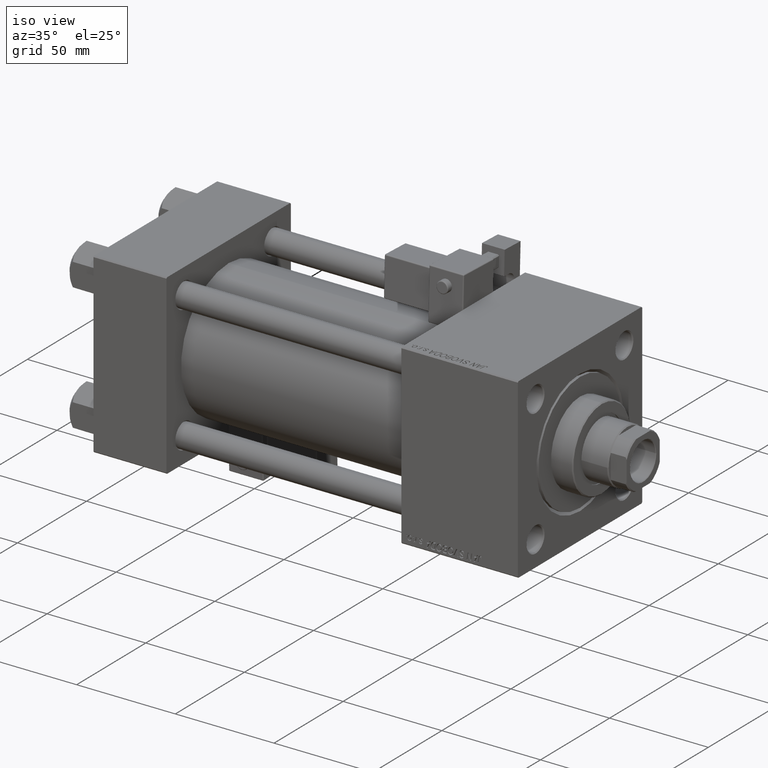
[diagram: clean part render]
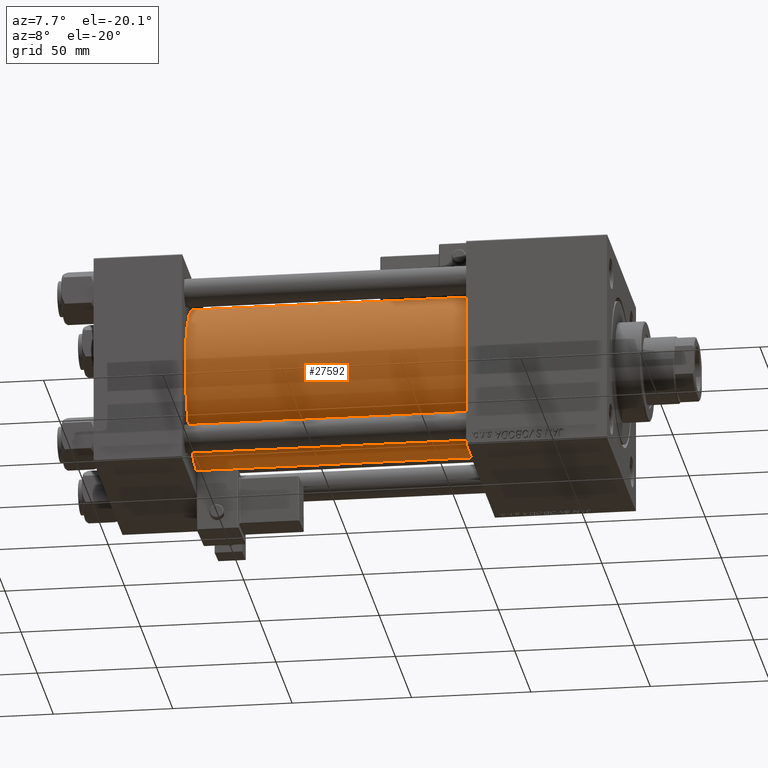
[diagram: tour spotlight — one face highlighted and labeled with its STEP entity id]
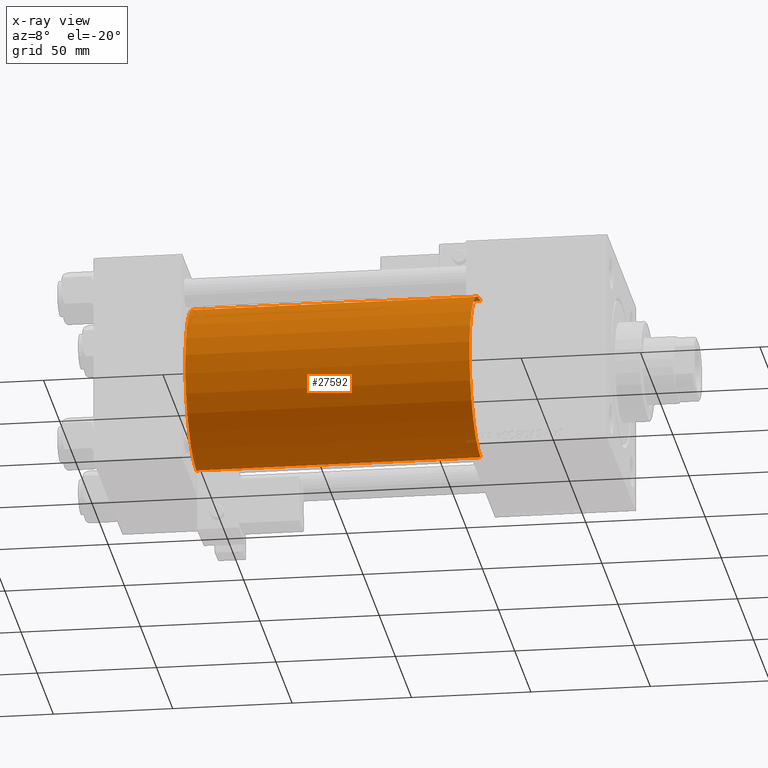
[diagram: x-ray of the same camera — body ghosted, this tour face saturated]
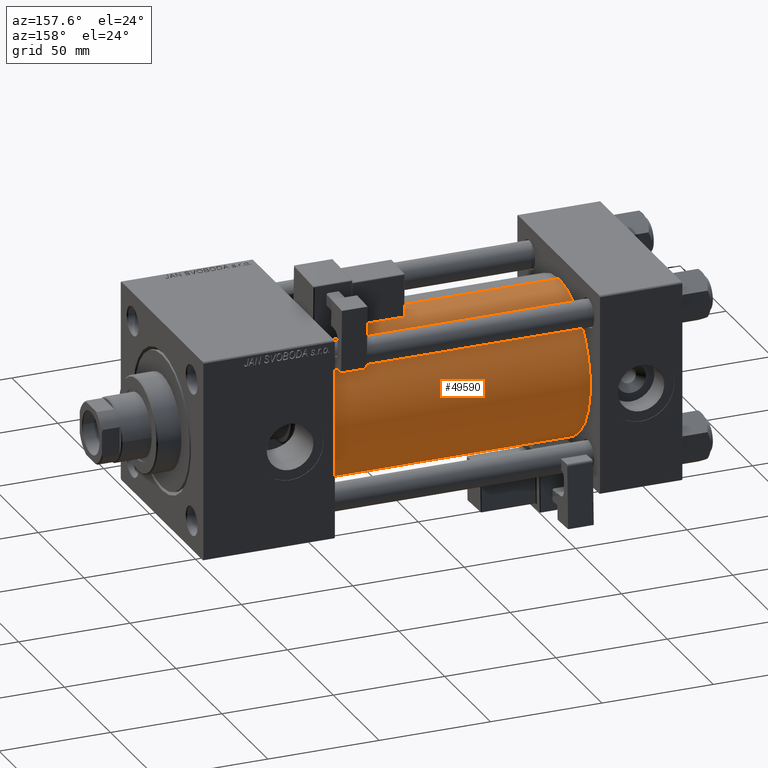
[diagram: tour spotlight — one face highlighted and labeled with its STEP entity id]
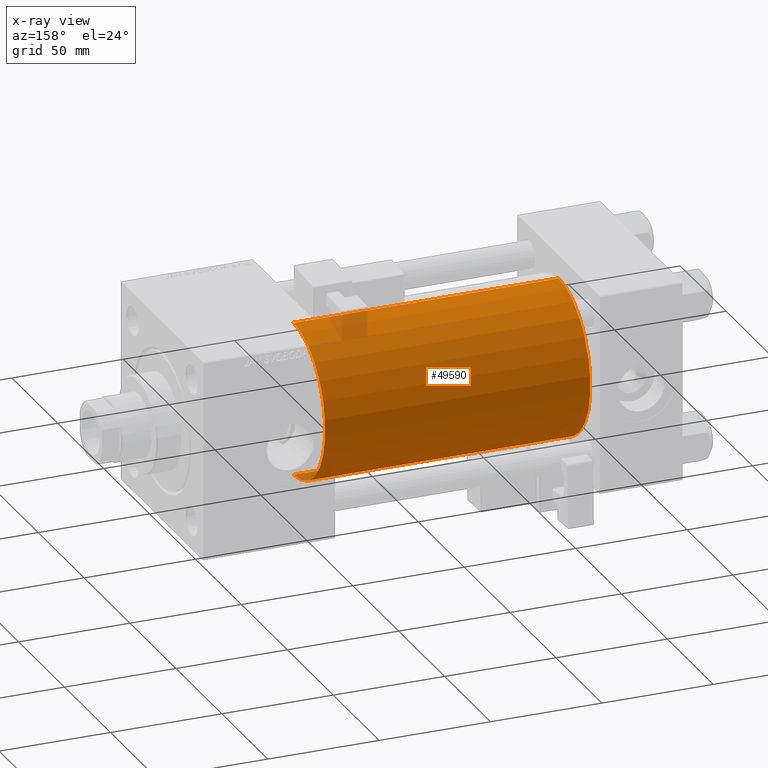
[diagram: x-ray of the same camera — body ghosted, this tour face saturated]
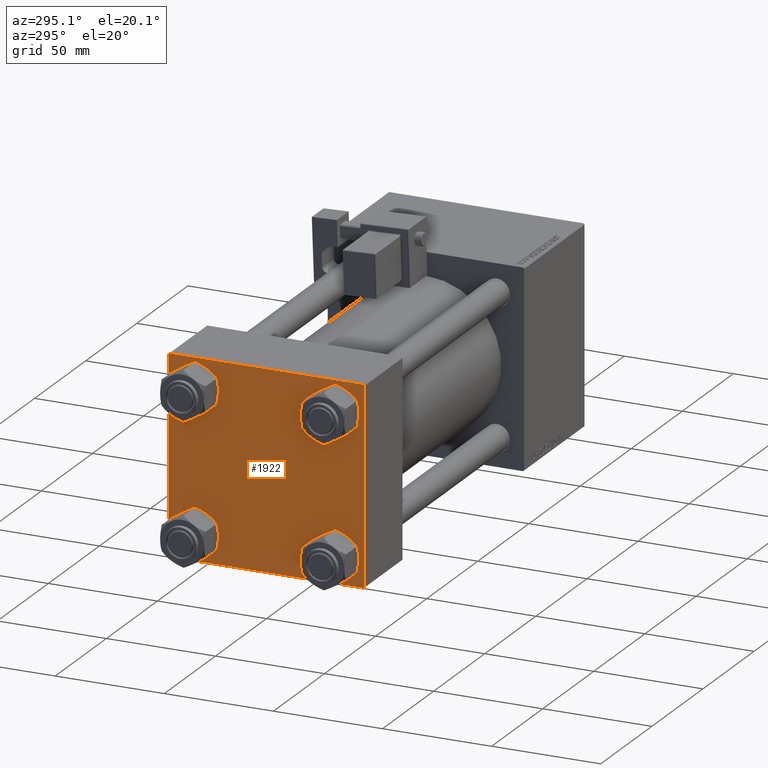
[diagram: tour spotlight — one face highlighted and labeled with its STEP entity id]
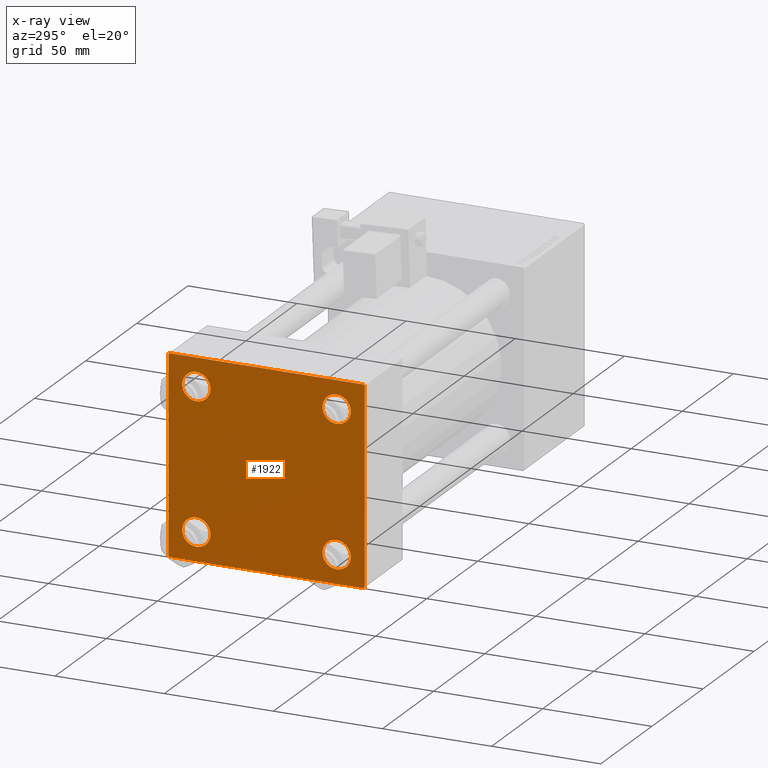
[diagram: x-ray of the same camera — body ghosted, this tour face saturated]
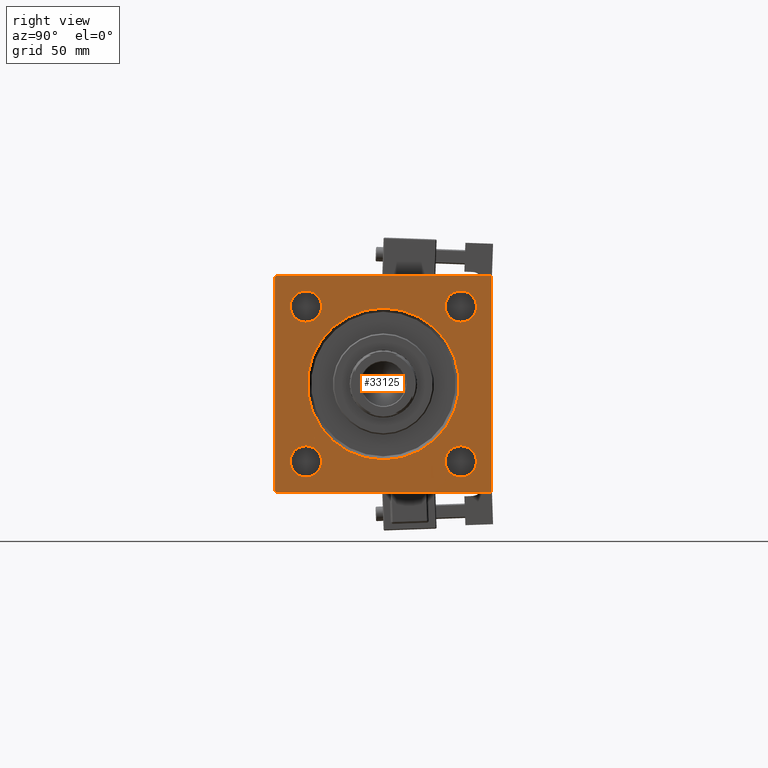
[diagram: tour spotlight — one face highlighted and labeled with its STEP entity id]
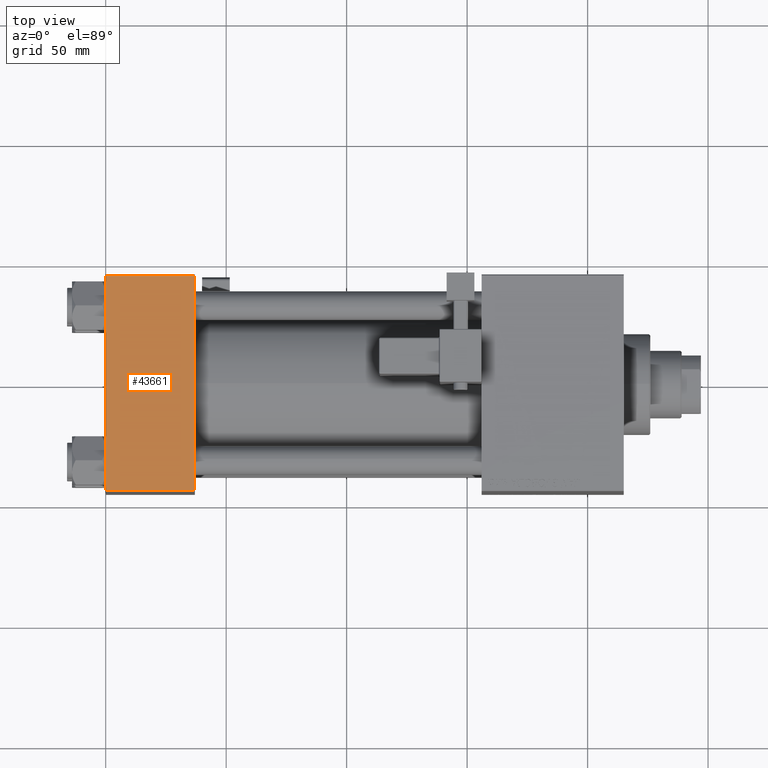
[diagram: tour spotlight — one face highlighted and labeled with its STEP entity id]
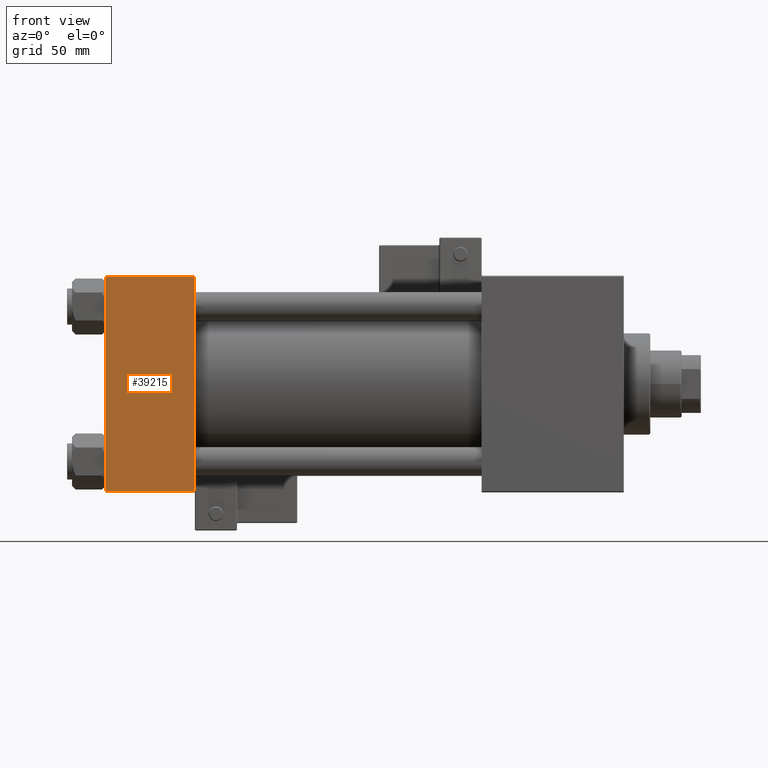
[diagram: tour spotlight — one face highlighted and labeled with its STEP entity id]
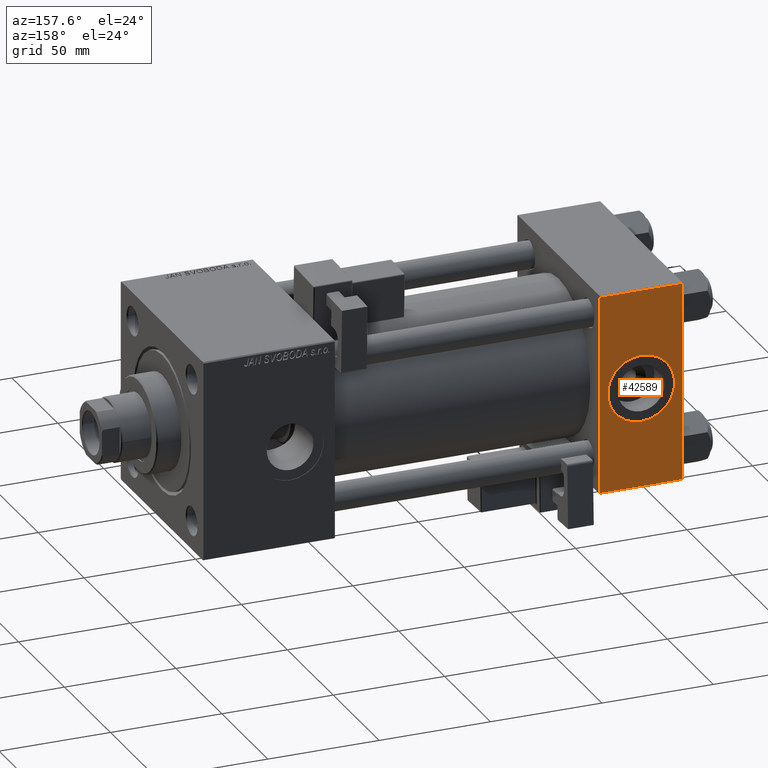
[diagram: tour spotlight — one face highlighted and labeled with its STEP entity id]
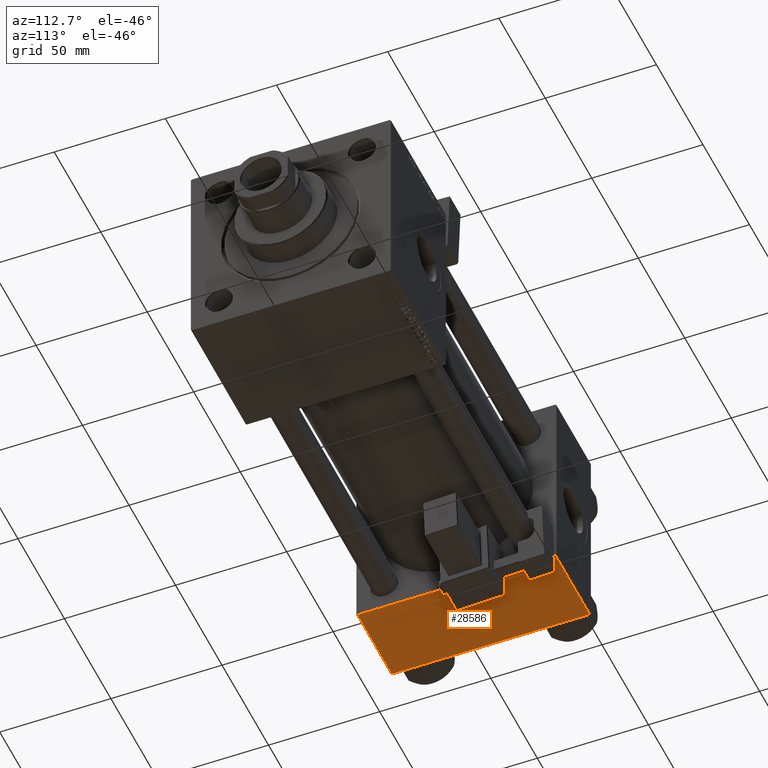
[diagram: tour spotlight — one face highlighted and labeled with its STEP entity id]
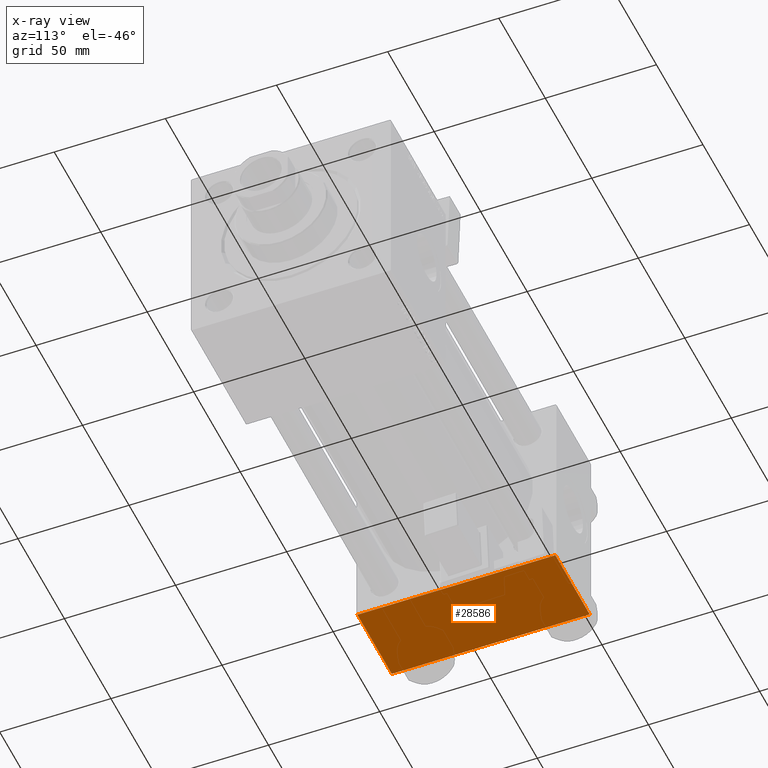
[diagram: x-ray of the same camera — body ghosted, this tour face saturated]
A machine part: a face-by-face anatomy tour. The part has 1336 B-rep faces; the first image is the clean iso view, then the 8 largest visible faces are spotlighted one at a time (largest first), each with its STEP entity span.

Face 1 — auxiliary view, entity #27592. An x-ray twin of the same camera follows (body ghosted, this face saturated) — the face is partly hidden behind the body. In plain terms, the highlighted cylindrical surface (partial cylindrical patch) has radius 34.5 mm, axis along (-1, -0, -0).
Definition (entity closure, byte-faithful):
#6608 = LINE ( 'NONE', #40158, #11565 ) ;
#6737 = CIRCLE ( 'NONE', #22319, 34.50000000000000000 ) ;
#7188 = AXIS2_PLACEMENT_3D ( 'NONE', #45293, #49091, #53435 ) ;
#8853 = EDGE_LOOP ( 'NONE', ( #21356, #30434, #32465, #15325 ) ) ;
#9674 = CARTESIAN_POINT ( 'NONE',  ( 37.00000000000000711, 1.622946243093158675E-15, -34.50000000000000000 ) ) ;
#11006 = EDGE_CURVE ( 'NONE', #36763, #17632, #12632, .T. ) ;
#11565 = VECTOR ( 'NONE', #23638, 1000.000000000000000 ) ;
#12580 = CARTESIAN_POINT ( 'NONE',  ( 37.00000000000000711, -2.602085213965210642E-15, 34.50000000000000000 ) ) ;
#12632 = LINE ( 'NONE', #16162, #36374 ) ;
#13201 = DIRECTION ( 'NONE',  ( -1.000000000000000000, -0.000000000000000000, -0.000000000000000000 ) ) ;
#15325 = ORIENTED_EDGE ( 'NONE', *, *, #52479, .T. ) ;
#15730 = VERTEX_POINT ( 'NONE', #37737 ) ;
#16162 = CARTESIAN_POINT ( 'NONE',  ( 156.0000000000000000, 1.622946243093158675E-15, -34.50000000000000000 ) ) ;
#16771 = EDGE_CURVE ( 'NONE', #15730, #44035, #6608, .T. ) ;
#17632 = VERTEX_POINT ( 'NONE', #9674 ) ;
#19393 = CARTESIAN_POINT ( 'NONE',  ( 156.0000000000000000, 1.622946243093158675E-15, -34.50000000000000000 ) ) ;
#19396 = DIRECTION ( 'NONE',  ( 0.000000000000000000, 0.000000000000000000, 1.000000000000000000 ) ) ;
#21356 = ORIENTED_EDGE ( 'NONE', *, *, #11006, .F. ) ;
#21555 = DIRECTION ( 'NONE',  ( -1.000000000000000000, -0.000000000000000000, -0.000000000000000000 ) ) ;
#22319 = AXIS2_PLACEMENT_3D ( 'NONE', #42292, #37971, #46648 ) ;
#23638 = DIRECTION ( 'NONE',  ( -1.000000000000000000, -0.000000000000000000, -0.000000000000000000 ) ) ;
#27592 = ADVANCED_FACE ( 'NONE', ( #41893 ), #50318, .T. ) ;
#30434 = ORIENTED_EDGE ( 'NONE', *, *, #37314, .F. ) ;
#30519 = CIRCLE ( 'NONE', #7188, 34.50000000000000000 ) ;
#32465 = ORIENTED_EDGE ( 'NONE', *, *, #16771, .T. ) ;
#36374 = VECTOR ( 'NONE', #21555, 1000.000000000000000 ) ;
#36763 = VERTEX_POINT ( 'NONE', #19393 ) ;
#37314 = EDGE_CURVE ( 'NONE', #15730, #36763, #6737, .T. ) ;
#37737 = CARTESIAN_POINT ( 'NONE',  ( 156.0000000000000000, -2.602085213965210642E-15, 34.50000000000000000 ) ) ;
#37833 = CARTESIAN_POINT ( 'NONE',  ( 156.0000000000000000, -2.602085213965210642E-15, 0.000000000000000000 ) ) ;
#37971 = DIRECTION ( 'NONE',  ( 1.000000000000000000, 0.000000000000000000, 0.000000000000000000 ) ) ;
#40158 = CARTESIAN_POINT ( 'NONE',  ( 156.0000000000000000, -2.602085213965210642E-15, 34.50000000000000000 ) ) ;
#41893 = FACE_OUTER_BOUND ( 'NONE', #8853, .T. ) ;
#42292 = CARTESIAN_POINT ( 'NONE',  ( 156.0000000000000000, -2.602085213965210642E-15, 0.000000000000000000 ) ) ;
#44035 = VERTEX_POINT ( 'NONE', #12580 ) ;
#45293 = CARTESIAN_POINT ( 'NONE',  ( 37.00000000000000711, -2.602085213965210642E-15, 0.000000000000000000 ) ) ;
#46648 = DIRECTION ( 'NONE',  ( 0.000000000000000000, 0.000000000000000000, -1.000000000000000000 ) ) ;
#49091 = DIRECTION ( 'NONE',  ( 1.000000000000000000, -0.000000000000000000, 0.000000000000000000 ) ) ;
#50318 = CYLINDRICAL_SURFACE ( 'NONE', #51674, 34.50000000000000000 ) ;
#51674 = AXIS2_PLACEMENT_3D ( 'NONE', #37833, #13201, #19396 ) ;
#52479 = EDGE_CURVE ( 'NONE', #44035, #17632, #30519, .T. ) ;
#53435 = DIRECTION ( 'NONE',  ( 0.000000000000000000, 0.000000000000000000, 1.000000000000000000 ) ) ;

Face 2 — auxiliary view, entity #49590. An x-ray twin of the same camera follows (body ghosted, this face saturated) — the face is partly hidden behind the body. In plain terms, the highlighted cylindrical surface (partial cylindrical patch) has radius 34.5 mm, axis along (-1, -0, -0).
Definition (entity closure, byte-faithful):
#676 = DIRECTION ( 'NONE',  ( 0.000000000000000000, 0.000000000000000000, 1.000000000000000000 ) ) ;
#1100 = CARTESIAN_POINT ( 'NONE',  ( 37.00000000000000711, -2.602085213965210642E-15, 0.000000000000000000 ) ) ;
#2802 = EDGE_CURVE ( 'NONE', #17632, #44035, #31992, .T. ) ;
#6608 = LINE ( 'NONE', #40158, #11565 ) ;
#7161 = ORIENTED_EDGE ( 'NONE', *, *, #32694, .F. ) ;
#8388 = ORIENTED_EDGE ( 'NONE', *, *, #11006, .T. ) ;
#9674 = CARTESIAN_POINT ( 'NONE',  ( 37.00000000000000711, 1.622946243093158675E-15, -34.50000000000000000 ) ) ;
#11006 = EDGE_CURVE ( 'NONE', #36763, #17632, #12632, .T. ) ;
#11565 = VECTOR ( 'NONE', #23638, 1000.000000000000000 ) ;
#12580 = CARTESIAN_POINT ( 'NONE',  ( 37.00000000000000711, -2.602085213965210642E-15, 34.50000000000000000 ) ) ;
#12632 = LINE ( 'NONE', #16162, #36374 ) ;
#12989 = EDGE_LOOP ( 'NONE', ( #7161, #8388, #46534, #51480 ) ) ;
#14883 = AXIS2_PLACEMENT_3D ( 'NONE', #21257, #37770, #676 ) ;
#15730 = VERTEX_POINT ( 'NONE', #37737 ) ;
#16162 = CARTESIAN_POINT ( 'NONE',  ( 156.0000000000000000, 1.622946243093158675E-15, -34.50000000000000000 ) ) ;
#16771 = EDGE_CURVE ( 'NONE', #15730, #44035, #6608, .T. ) ;
#17632 = VERTEX_POINT ( 'NONE', #9674 ) ;
#19067 = AXIS2_PLACEMENT_3D ( 'NONE', #1100, #26811, #47153 ) ;
#19393 = CARTESIAN_POINT ( 'NONE',  ( 156.0000000000000000, 1.622946243093158675E-15, -34.50000000000000000 ) ) ;
#21257 = CARTESIAN_POINT ( 'NONE',  ( 156.0000000000000000, -2.602085213965210642E-15, 0.000000000000000000 ) ) ;
#21555 = DIRECTION ( 'NONE',  ( -1.000000000000000000, -0.000000000000000000, -0.000000000000000000 ) ) ;
#23638 = DIRECTION ( 'NONE',  ( -1.000000000000000000, -0.000000000000000000, -0.000000000000000000 ) ) ;
#24799 = CARTESIAN_POINT ( 'NONE',  ( 156.0000000000000000, -2.602085213965210642E-15, 0.000000000000000000 ) ) ;
#25721 = AXIS2_PLACEMENT_3D ( 'NONE', #24799, #52739, #53542 ) ;
#26811 = DIRECTION ( 'NONE',  ( 1.000000000000000000, -0.000000000000000000, 0.000000000000000000 ) ) ;
#31992 = CIRCLE ( 'NONE', #19067, 34.50000000000000000 ) ;
#32694 = EDGE_CURVE ( 'NONE', #36763, #15730, #48242, .T. ) ;
#33441 = FACE_OUTER_BOUND ( 'NONE', #12989, .T. ) ;
#36374 = VECTOR ( 'NONE', #21555, 1000.000000000000000 ) ;
#36763 = VERTEX_POINT ( 'NONE', #19393 ) ;
#37737 = CARTESIAN_POINT ( 'NONE',  ( 156.0000000000000000, -2.602085213965210642E-15, 34.50000000000000000 ) ) ;
#37770 = DIRECTION ( 'NONE',  ( -1.000000000000000000, -0.000000000000000000, -0.000000000000000000 ) ) ;
#40158 = CARTESIAN_POINT ( 'NONE',  ( 156.0000000000000000, -2.602085213965210642E-15, 34.50000000000000000 ) ) ;
#41828 = CYLINDRICAL_SURFACE ( 'NONE', #14883, 34.50000000000000000 ) ;
#44035 = VERTEX_POINT ( 'NONE', #12580 ) ;
#46534 = ORIENTED_EDGE ( 'NONE', *, *, #2802, .T. ) ;
#47153 = DIRECTION ( 'NONE',  ( 0.000000000000000000, 0.000000000000000000, 1.000000000000000000 ) ) ;
#48242 = CIRCLE ( 'NONE', #25721, 34.50000000000000000 ) ;
#49590 = ADVANCED_FACE ( 'NONE', ( #33441 ), #41828, .T. ) ;
#51480 = ORIENTED_EDGE ( 'NONE', *, *, #16771, .F. ) ;
#52739 = DIRECTION ( 'NONE',  ( 1.000000000000000000, 0.000000000000000000, 0.000000000000000000 ) ) ;
#53542 = DIRECTION ( 'NONE',  ( 0.000000000000000000, 0.000000000000000000, -1.000000000000000000 ) ) ;

Face 3 — auxiliary view, entity #1922. An x-ray twin of the same camera follows (body ghosted, this face saturated) — the face is partly hidden behind the body. In plain terms, the highlighted planar face has unit normal (-1, 0, 0).
Definition (entity closure, byte-faithful):
#28 = VECTOR ( 'NONE', #10439, 1000.000000000000000 ) ;
#132 = CARTESIAN_POINT ( 'NONE',  ( 0.000000000000000000, 44.99999999999998579, 44.50000000000001421 ) ) ;
#807 = LINE ( 'NONE', #46039, #4518 ) ;
#1361 = VERTEX_POINT ( 'NONE', #10984 ) ;
#1512 = AXIS2_PLACEMENT_3D ( 'NONE', #12183, #15704, #15176 ) ;
#1922 = ADVANCED_FACE ( 'NONE', ( #45123, #36991, #15886, #16409, #8023 ), #11287, .T. ) ;
#1949 = EDGE_LOOP ( 'NONE', ( #33040, #49055, #42370, #10705, #10966, #8706, #50895, #34146 ) ) ;
#2087 = DIRECTION ( 'NONE',  ( -0.000000000000000000, 0.7071067811865425767, 0.7071067811865524577 ) ) ;
#2380 = AXIS2_PLACEMENT_3D ( 'NONE', #30455, #51623, #14497 ) ;
#2405 = LINE ( 'NONE', #35443, #40966 ) ;
#2848 = VECTOR ( 'NONE', #53269, 1000.000000000000114 ) ;
#3099 = EDGE_CURVE ( 'NONE', #18211, #20857, #52167, .T. ) ;
#3696 = CIRCLE ( 'NONE', #32221, 6.499999999999977796 ) ;
#3809 = CARTESIAN_POINT ( 'NONE',  ( 0.000000000000000000, 44.49999999999998579, 45.00000000000001421 ) ) ;
#4035 = VECTOR ( 'NONE', #9122, 1000.000000000000000 ) ;
#4102 = CARTESIAN_POINT ( 'NONE',  ( 0.000000000000000000, 32.14999999999999147, -32.15000000000000568 ) ) ;
#4518 = VECTOR ( 'NONE', #46577, 1000.000000000000000 ) ;
#5631 = VERTEX_POINT ( 'NONE', #45072 ) ;
#5698 = VERTEX_POINT ( 'NONE', #53487 ) ;
#5967 = EDGE_LOOP ( 'NONE', ( #39383, #46338 ) ) ;
#6371 = CARTESIAN_POINT ( 'NONE',  ( 0.000000000000000000, -32.14999999999997726, 32.15000000000001279 ) ) ;
#6630 = DIRECTION ( 'NONE',  ( 0.000000000000000000, 0.000000000000000000, 1.000000000000000000 ) ) ;
#7104 = CARTESIAN_POINT ( 'NONE',  ( 0.000000000000000000, 44.49999999999998579, -44.99999999999998579 ) ) ;
#7504 = EDGE_CURVE ( 'NONE', #41690, #1361, #807, .T. ) ;
#7660 = ORIENTED_EDGE ( 'NONE', *, *, #32267, .T. ) ;
#8023 = FACE_OUTER_BOUND ( 'NONE', #1949, .T. ) ;
#8706 = ORIENTED_EDGE ( 'NONE', *, *, #36615, .T. ) ;
#8801 = EDGE_CURVE ( 'NONE', #37166, #19967, #32643, .T. ) ;
#9122 = DIRECTION ( 'NONE',  ( 0.000000000000000000, -1.000000000000000000, -1.541976423090495633E-16 ) ) ;
#9261 = DIRECTION ( 'NONE',  ( 1.000000000000000000, -0.000000000000000000, 0.000000000000000000 ) ) ;
#10214 = LINE ( 'NONE', #34038, #27472 ) ;
#10439 = DIRECTION ( 'NONE',  ( 0.000000000000000000, -1.000000000000000000, -1.541976423090495387E-16 ) ) ;
#10705 = ORIENTED_EDGE ( 'NONE', *, *, #29213, .T. ) ;
#10774 = CARTESIAN_POINT ( 'NONE',  ( 0.000000000000000000, -45.00000000000000711, 44.49999999999997158 ) ) ;
#10954 = DIRECTION ( 'NONE',  ( 1.000000000000000000, -0.000000000000000000, 0.000000000000000000 ) ) ;
#10966 = ORIENTED_EDGE ( 'NONE', *, *, #7504, .F. ) ;
#10984 = CARTESIAN_POINT ( 'NONE',  ( 0.000000000000000000, -45.00000000000000000, -44.49999999999995737 ) ) ;
#11033 = AXIS2_PLACEMENT_3D ( 'NONE', #38869, #10954, #39664 ) ;
#11287 = PLANE ( 'NONE',  #25931 ) ;
#12183 = CARTESIAN_POINT ( 'NONE',  ( 0.000000000000000000, -32.14999999999997726, 32.15000000000001279 ) ) ;
#13372 = VERTEX_POINT ( 'NONE', #132 ) ;
#14173 = EDGE_LOOP ( 'NONE', ( #44648, #14571 ) ) ;
#14497 = DIRECTION ( 'NONE',  ( 0.000000000000000000, 0.000000000000000000, 1.000000000000000000 ) ) ;
#14571 = ORIENTED_EDGE ( 'NONE', *, *, #32867, .T. ) ;
#15176 = DIRECTION ( 'NONE',  ( 0.000000000000000000, 0.000000000000000000, 1.000000000000000000 ) ) ;
#15449 = EDGE_CURVE ( 'NONE', #18211, #13372, #49657, .T. ) ;
#15704 = DIRECTION ( 'NONE',  ( 1.000000000000000000, -0.000000000000000000, 0.000000000000000000 ) ) ;
#15886 = FACE_BOUND ( 'NONE', #5967, .T. ) ;
#16403 = CARTESIAN_POINT ( 'NONE',  ( 0.000000000000000000, 44.74999999999998579, -44.74999999999998579 ) ) ;
#16409 = FACE_BOUND ( 'NONE', #50406, .T. ) ;
#16452 = ORIENTED_EDGE ( 'NONE', *, *, #35401, .T. ) ;
#16493 = DIRECTION ( 'NONE',  ( 0.000000000000000000, 0.000000000000000000, 1.000000000000000000 ) ) ;
#17074 = DIRECTION ( 'NONE',  ( 0.000000000000000000, -0.7071067811865474617, 0.7071067811865474617 ) ) ;
#17420 = EDGE_CURVE ( 'NONE', #13372, #37166, #2405, .T. ) ;
#18211 = VERTEX_POINT ( 'NONE', #3809 ) ;
#18414 = EDGE_CURVE ( 'NONE', #22338, #24719, #3696, .T. ) ;
#18557 = DIRECTION ( 'NONE',  ( 1.000000000000000000, -0.000000000000000000, 0.000000000000000000 ) ) ;
#19040 = CARTESIAN_POINT ( 'NONE',  ( 0.000000000000000000, -44.49999999999995737, -45.00000000000000000 ) ) ;
#19626 = CARTESIAN_POINT ( 'NONE',  ( 0.000000000000000000, -44.49999999999995737, 45.00000000000000000 ) ) ;
#19967 = VERTEX_POINT ( 'NONE', #7104 ) ;
#20344 = EDGE_CURVE ( 'NONE', #5631, #34648, #40113, .T. ) ;
#20525 = DIRECTION ( 'NONE',  ( 1.000000000000000000, -0.000000000000000000, 0.000000000000000000 ) ) ;
#20857 = VERTEX_POINT ( 'NONE', #19626 ) ;
#20915 = CARTESIAN_POINT ( 'NONE',  ( 0.000000000000000000, 44.74999999999999289, 44.74999999999999289 ) ) ;
#21165 = DIRECTION ( 'NONE',  ( 1.000000000000000000, -0.000000000000000000, 0.000000000000000000 ) ) ;
#21589 = CARTESIAN_POINT ( 'NONE',  ( 0.000000000000000000, 32.14999999999999147, -25.65000000000002700 ) ) ;
#22338 = VERTEX_POINT ( 'NONE', #32078 ) ;
#24719 = VERTEX_POINT ( 'NONE', #25322 ) ;
#25322 = CARTESIAN_POINT ( 'NONE',  ( 0.000000000000000000, -32.14999999999997726, -38.64999999999999147 ) ) ;
#25629 = ORIENTED_EDGE ( 'NONE', *, *, #20344, .T. ) ;
#25931 = AXIS2_PLACEMENT_3D ( 'NONE', #32119, #49467, #40511 ) ;
#27472 = VECTOR ( 'NONE', #2087, 1000.000000000000114 ) ;
#28707 = EDGE_CURVE ( 'NONE', #40187, #5698, #40408, .T. ) ;
#28842 = CARTESIAN_POINT ( 'NONE',  ( 0.000000000000000000, 32.14999999999999147, -38.64999999999998437 ) ) ;
#29157 = VECTOR ( 'NONE', #17074, 1000.000000000000114 ) ;
#29213 = EDGE_CURVE ( 'NONE', #44414, #1361, #33044, .T. ) ;
#29866 = EDGE_CURVE ( 'NONE', #46468, #49195, #52588, .T. ) ;
#30002 = CARTESIAN_POINT ( 'NONE',  ( 0.000000000000000000, 32.14999999999999147, 32.15000000000000568 ) ) ;
#30455 = CARTESIAN_POINT ( 'NONE',  ( 0.000000000000000000, 32.14999999999999147, -32.15000000000000568 ) ) ;
#30493 = CARTESIAN_POINT ( 'NONE',  ( 0.000000000000000000, 44.99999999999998579, -44.99999999999998579 ) ) ;
#31482 = EDGE_CURVE ( 'NONE', #19967, #44414, #46497, .T. ) ;
#32078 = CARTESIAN_POINT ( 'NONE',  ( 0.000000000000000000, -32.14999999999997726, -25.65000000000003411 ) ) ;
#32119 = CARTESIAN_POINT ( 'NONE',  ( 0.000000000000000000, 0.000000000000000000, 0.000000000000000000 ) ) ;
#32221 = AXIS2_PLACEMENT_3D ( 'NONE', #33507, #20525, #45981 ) ;
#32267 = EDGE_CURVE ( 'NONE', #34648, #5631, #48201, .T. ) ;
#32643 = LINE ( 'NONE', #16403, #2848 ) ;
#32861 = EDGE_CURVE ( 'NONE', #49195, #46468, #51744, .T. ) ;
#32867 = EDGE_CURVE ( 'NONE', #24719, #22338, #44786, .T. ) ;
#32919 = ORIENTED_EDGE ( 'NONE', *, *, #28707, .T. ) ;
#33040 = ORIENTED_EDGE ( 'NONE', *, *, #17420, .T. ) ;
#33044 = LINE ( 'NONE', #41165, #29157 ) ;
#33507 = CARTESIAN_POINT ( 'NONE',  ( 0.000000000000000000, -32.14999999999997726, -32.15000000000001279 ) ) ;
#33530 = AXIS2_PLACEMENT_3D ( 'NONE', #4102, #21165, #37941 ) ;
#34038 = CARTESIAN_POINT ( 'NONE',  ( -0.000000000000000000, -44.75000000000029843, 44.74999999999967315 ) ) ;
#34146 = ORIENTED_EDGE ( 'NONE', *, *, #15449, .T. ) ;
#34648 = VERTEX_POINT ( 'NONE', #50633 ) ;
#34734 = CARTESIAN_POINT ( 'NONE',  ( 0.000000000000000000, -32.14999999999997726, 25.64999999999999147 ) ) ;
#35401 = EDGE_CURVE ( 'NONE', #5698, #40187, #38708, .T. ) ;
#35443 = CARTESIAN_POINT ( 'NONE',  ( 0.000000000000000000, 44.99999999999998579, 45.00000000000001421 ) ) ;
#36615 = EDGE_CURVE ( 'NONE', #41690, #20857, #10214, .T. ) ;
#36991 = FACE_BOUND ( 'NONE', #14173, .T. ) ;
#37166 = VERTEX_POINT ( 'NONE', #39904 ) ;
#37308 = DIRECTION ( 'NONE',  ( 0.000000000000000000, 0.000000000000000000, -1.000000000000000000 ) ) ;
#37825 = AXIS2_PLACEMENT_3D ( 'NONE', #6371, #18557, #6630 ) ;
#37941 = DIRECTION ( 'NONE',  ( 0.000000000000000000, 0.000000000000000000, 1.000000000000000000 ) ) ;
#38708 = CIRCLE ( 'NONE', #1512, 6.500000000000019540 ) ;
#38773 = CARTESIAN_POINT ( 'NONE',  ( 0.000000000000000000, 32.14999999999999147, 32.15000000000000568 ) ) ;
#38869 = CARTESIAN_POINT ( 'NONE',  ( 0.000000000000000000, -32.14999999999997726, -32.15000000000001279 ) ) ;
#38878 = CARTESIAN_POINT ( 'NONE',  ( 0.000000000000000000, 44.99999999999998579, 45.00000000000001421 ) ) ;
#39212 = VECTOR ( 'NONE', #49919, 1000.000000000000114 ) ;
#39383 = ORIENTED_EDGE ( 'NONE', *, *, #32861, .T. ) ;
#39664 = DIRECTION ( 'NONE',  ( 0.000000000000000000, 0.000000000000000000, 1.000000000000000000 ) ) ;
#39904 = CARTESIAN_POINT ( 'NONE',  ( 0.000000000000000000, 44.99999999999998579, -44.49999999999995737 ) ) ;
#40113 = CIRCLE ( 'NONE', #49659, 6.499999999999977796 ) ;
#40187 = VERTEX_POINT ( 'NONE', #34734 ) ;
#40408 = CIRCLE ( 'NONE', #37825, 6.500000000000019540 ) ;
#40511 = DIRECTION ( 'NONE',  ( -0.000000000000000000, 0.000000000000000000, 1.000000000000000000 ) ) ;
#40966 = VECTOR ( 'NONE', #37308, 1000.000000000000000 ) ;
#41165 = CARTESIAN_POINT ( 'NONE',  ( 0.000000000000000000, -44.74999999999998579, -44.74999999999998579 ) ) ;
#41690 = VERTEX_POINT ( 'NONE', #10774 ) ;
#42370 = ORIENTED_EDGE ( 'NONE', *, *, #31482, .T. ) ;
#44414 = VERTEX_POINT ( 'NONE', #19040 ) ;
#44648 = ORIENTED_EDGE ( 'NONE', *, *, #18414, .T. ) ;
#44786 = CIRCLE ( 'NONE', #11033, 6.499999999999977796 ) ;
#45072 = CARTESIAN_POINT ( 'NONE',  ( 0.000000000000000000, 32.14999999999999147, 38.64999999999999147 ) ) ;
#45123 = FACE_BOUND ( 'NONE', #47815, .T. ) ;
#45981 = DIRECTION ( 'NONE',  ( 0.000000000000000000, 0.000000000000000000, 1.000000000000000000 ) ) ;
#46039 = CARTESIAN_POINT ( 'NONE',  ( 0.000000000000000000, -45.00000000000000711, 45.00000000000000000 ) ) ;
#46338 = ORIENTED_EDGE ( 'NONE', *, *, #29866, .T. ) ;
#46468 = VERTEX_POINT ( 'NONE', #28842 ) ;
#46497 = LINE ( 'NONE', #30493, #4035 ) ;
#46577 = DIRECTION ( 'NONE',  ( 0.000000000000000000, 7.709882115452476934E-17, -1.000000000000000000 ) ) ;
#47815 = EDGE_LOOP ( 'NONE', ( #16452, #32919 ) ) ;
#48201 = CIRCLE ( 'NONE', #49948, 6.499999999999977796 ) ;
#49055 = ORIENTED_EDGE ( 'NONE', *, *, #8801, .T. ) ;
#49195 = VERTEX_POINT ( 'NONE', #21589 ) ;
#49467 = DIRECTION ( 'NONE',  ( -1.000000000000000000, 0.000000000000000000, -0.000000000000000000 ) ) ;
#49657 = LINE ( 'NONE', #20915, #39212 ) ;
#49659 = AXIS2_PLACEMENT_3D ( 'NONE', #30002, #50632, #16493 ) ;
#49919 = DIRECTION ( 'NONE',  ( 0.000000000000000000, 0.7071067811865474617, -0.7071067811865474617 ) ) ;
#49948 = AXIS2_PLACEMENT_3D ( 'NONE', #38773, #9261, #51268 ) ;
#50406 = EDGE_LOOP ( 'NONE', ( #25629, #7660 ) ) ;
#50632 = DIRECTION ( 'NONE',  ( 1.000000000000000000, -0.000000000000000000, 0.000000000000000000 ) ) ;
#50633 = CARTESIAN_POINT ( 'NONE',  ( 0.000000000000000000, 32.14999999999999147, 25.65000000000002700 ) ) ;
#50895 = ORIENTED_EDGE ( 'NONE', *, *, #3099, .F. ) ;
#51268 = DIRECTION ( 'NONE',  ( 0.000000000000000000, 0.000000000000000000, 1.000000000000000000 ) ) ;
#51623 = DIRECTION ( 'NONE',  ( 1.000000000000000000, -0.000000000000000000, 0.000000000000000000 ) ) ;
#51744 = CIRCLE ( 'NONE', #2380, 6.499999999999977796 ) ;
#52167 = LINE ( 'NONE', #38878, #28 ) ;
#52588 = CIRCLE ( 'NONE', #33530, 6.499999999999977796 ) ;
#53269 = DIRECTION ( 'NONE',  ( -0.000000000000000000, -0.7071067811865474617, -0.7071067811865474617 ) ) ;
#53487 = CARTESIAN_POINT ( 'NONE',  ( 0.000000000000000000, -32.14999999999997726, 38.65000000000003411 ) ) ;

Face 4 — right view, entity #33125. In plain terms, the highlighted planar face has unit normal (-1, 0, 0).
Definition (entity closure, byte-faithful):
#494 = VERTEX_POINT ( 'NONE', #39486 ) ;
#721 = CARTESIAN_POINT ( 'NONE',  ( 215.0000000000000000, 32.14999999999999147, 32.15000000000000568 ) ) ;
#1081 = VECTOR ( 'NONE', #10799, 1000.000000000000000 ) ;
#1155 = EDGE_CURVE ( 'NONE', #7658, #1434, #50991, .T. ) ;
#1434 = VERTEX_POINT ( 'NONE', #5873 ) ;
#1531 = DIRECTION ( 'NONE',  ( 0.000000000000000000, 0.000000000000000000, 1.000000000000000000 ) ) ;
#1660 = CARTESIAN_POINT ( 'NONE',  ( 215.0000000000000000, -32.15000000000001279, -25.65000000000002700 ) ) ;
#1701 = DIRECTION ( 'NONE',  ( -0.000000000000000000, 0.000000000000000000, 1.000000000000000000 ) ) ;
#1832 = EDGE_CURVE ( 'NONE', #51246, #30036, #46912, .T. ) ;
#1976 = DIRECTION ( 'NONE',  ( -1.000000000000000000, 0.000000000000000000, -0.000000000000000000 ) ) ;
#2011 = CARTESIAN_POINT ( 'NONE',  ( 215.0000000000000000, 44.50000000000001421, 45.00000000000000000 ) ) ;
#2276 = LINE ( 'NONE', #2011, #8686 ) ;
#2400 = LINE ( 'NONE', #18921, #1081 ) ;
#3160 = EDGE_CURVE ( 'NONE', #494, #12822, #27736, .T. ) ;
#3857 = CARTESIAN_POINT ( 'NONE',  ( 215.0000000000000000, -45.00000000000000000, 44.99999999999998579 ) ) ;
#4008 = ORIENTED_EDGE ( 'NONE', *, *, #53341, .T. ) ;
#4042 = LINE ( 'NONE', #27608, #28782 ) ;
#4466 = DIRECTION ( 'NONE',  ( 0.000000000000000000, 0.000000000000000000, 1.000000000000000000 ) ) ;
#4568 = DIRECTION ( 'NONE',  ( 0.000000000000000000, 0.000000000000000000, 1.000000000000000000 ) ) ;
#5100 = CARTESIAN_POINT ( 'NONE',  ( 215.0000000000000000, 32.14999999999999147, -25.65000000000002700 ) ) ;
#5445 = CARTESIAN_POINT ( 'NONE',  ( 215.0000000000000000, 45.00000000000001421, -44.49999999999997158 ) ) ;
#5507 = FACE_BOUND ( 'NONE', #29059, .T. ) ;
#5547 = DIRECTION ( 'NONE',  ( 0.000000000000000000, 0.000000000000000000, 1.000000000000000000 ) ) ;
#5873 = CARTESIAN_POINT ( 'NONE',  ( 215.0000000000000000, 32.14999999999999147, 25.65000000000003411 ) ) ;
#6041 = FACE_BOUND ( 'NONE', #25134, .T. ) ;
#6047 = CIRCLE ( 'NONE', #38902, 6.499999999999977796 ) ;
#6708 = CARTESIAN_POINT ( 'NONE',  ( 215.0000000000000000, -32.15000000000001279, -38.64999999999999147 ) ) ;
#7658 = VERTEX_POINT ( 'NONE', #44106 ) ;
#7691 = CIRCLE ( 'NONE', #43131, 6.499999999999977796 ) ;
#7707 = CARTESIAN_POINT ( 'NONE',  ( 215.0000000000000000, 45.00000000000001421, 45.00000000000000000 ) ) ;
#7768 = DIRECTION ( 'NONE',  ( -0.000000000000000000, -0.7071067811865474617, -0.7071067811865474617 ) ) ;
#7886 = CARTESIAN_POINT ( 'NONE',  ( 215.0000000000000000, 32.14999999999999147, -38.64999999999999147 ) ) ;
#8233 = CARTESIAN_POINT ( 'NONE',  ( 215.0000000000000000, -32.14999999999999147, 38.64999999999997016 ) ) ;
#8686 = VECTOR ( 'NONE', #42623, 1000.000000000000114 ) ;
#9478 = AXIS2_PLACEMENT_3D ( 'NONE', #721, #25894, #1531 ) ;
#9837 = FACE_BOUND ( 'NONE', #32356, .T. ) ;
#10401 = DIRECTION ( 'NONE',  ( -1.000000000000000000, -0.000000000000000000, -0.000000000000000000 ) ) ;
#10799 = DIRECTION ( 'NONE',  ( 0.000000000000000000, 0.000000000000000000, -1.000000000000000000 ) ) ;
#11202 = DIRECTION ( 'NONE',  ( 0.000000000000000000, 0.000000000000000000, 1.000000000000000000 ) ) ;
#12335 = AXIS2_PLACEMENT_3D ( 'NONE', #43974, #19064, #11202 ) ;
#12822 = VERTEX_POINT ( 'NONE', #34159 ) ;
#13021 = CIRCLE ( 'NONE', #16463, 31.49999999999997158 ) ;
#13533 = DIRECTION ( 'NONE',  ( -1.000000000000000000, -0.000000000000000000, -0.000000000000000000 ) ) ;
#14175 = CARTESIAN_POINT ( 'NONE',  ( 215.0000000000000000, 0.000000000000000000, 0.000000000000000000 ) ) ;
#14783 = EDGE_CURVE ( 'NONE', #28760, #41219, #2400, .T. ) ;
#14859 = CARTESIAN_POINT ( 'NONE',  ( 215.0000000000000000, 32.14999999999999147, 32.15000000000000568 ) ) ;
#14980 = DIRECTION ( 'NONE',  ( 0.000000000000000000, 7.709882115452478166E-17, -1.000000000000000000 ) ) ;
#15631 = DIRECTION ( 'NONE',  ( -1.000000000000000000, -0.000000000000000000, -0.000000000000000000 ) ) ;
#15974 = CARTESIAN_POINT ( 'NONE',  ( 215.0000000000000000, -44.49999999999995737, -45.00000000000000000 ) ) ;
#16201 = CIRCLE ( 'NONE', #30881, 6.499999999999977796 ) ;
#16428 = VERTEX_POINT ( 'NONE', #32088 ) ;
#16463 = AXIS2_PLACEMENT_3D ( 'NONE', #51595, #10401, #5547 ) ;
#16683 = ORIENTED_EDGE ( 'NONE', *, *, #22691, .T. ) ;
#16815 = EDGE_CURVE ( 'NONE', #29129, #41477, #40079, .T. ) ;
#17051 = AXIS2_PLACEMENT_3D ( 'NONE', #50930, #13533, #30028 ) ;
#17340 = AXIS2_PLACEMENT_3D ( 'NONE', #38308, #21254, #4466 ) ;
#17673 = EDGE_CURVE ( 'NONE', #17889, #16428, #29591, .T. ) ;
#17889 = VERTEX_POINT ( 'NONE', #43098 ) ;
#18121 = DIRECTION ( 'NONE',  ( 0.000000000000000000, 0.000000000000000000, 1.000000000000000000 ) ) ;
#18227 = FACE_BOUND ( 'NONE', #35519, .T. ) ;
#18321 = ORIENTED_EDGE ( 'NONE', *, *, #36290, .T. ) ;
#18327 = DIRECTION ( 'NONE',  ( -1.000000000000000000, -0.000000000000000000, -0.000000000000000000 ) ) ;
#18921 = CARTESIAN_POINT ( 'NONE',  ( 215.0000000000000000, 45.00000000000001421, 45.00000000000000000 ) ) ;
#18969 = EDGE_LOOP ( 'NONE', ( #29774, #29550 ) ) ;
#19064 = DIRECTION ( 'NONE',  ( -1.000000000000000000, -0.000000000000000000, -0.000000000000000000 ) ) ;
#19951 = CARTESIAN_POINT ( 'NONE',  ( 215.0000000000000000, -45.00000000000000000, 44.50000000000001421 ) ) ;
#20740 = AXIS2_PLACEMENT_3D ( 'NONE', #14859, #39756, #18121 ) ;
#21254 = DIRECTION ( 'NONE',  ( -1.000000000000000000, -0.000000000000000000, -0.000000000000000000 ) ) ;
#21384 = CIRCLE ( 'NONE', #17051, 6.499999999999977796 ) ;
#22260 = EDGE_LOOP ( 'NONE', ( #16683, #4008, #35070, #30610, #46525, #50927, #48399, #34976 ) ) ;
#22691 = EDGE_CURVE ( 'NONE', #39406, #35078, #44746, .T. ) ;
#22906 = VERTEX_POINT ( 'NONE', #1660 ) ;
#23686 = DIRECTION ( 'NONE',  ( 0.000000000000000000, -1.000000000000000000, -1.541976423090495140E-16 ) ) ;
#24875 = CARTESIAN_POINT ( 'NONE',  ( 215.0000000000000000, -32.15000000000001279, -32.15000000000000568 ) ) ;
#25134 = EDGE_LOOP ( 'NONE', ( #34660, #18321 ) ) ;
#25346 = CARTESIAN_POINT ( 'NONE',  ( 215.0000000000000000, 44.50000000000001421, -45.00000000000000000 ) ) ;
#25894 = DIRECTION ( 'NONE',  ( -1.000000000000000000, -0.000000000000000000, -0.000000000000000000 ) ) ;
#25982 = ORIENTED_EDGE ( 'NONE', *, *, #17673, .T. ) ;
#26445 = CARTESIAN_POINT ( 'NONE',  ( 215.0000000000000000, -32.15000000000001279, -32.15000000000000568 ) ) ;
#26575 = DIRECTION ( 'NONE',  ( 0.000000000000000000, -1.000000000000000000, 0.000000000000000000 ) ) ;
#26608 = PLANE ( 'NONE',  #36977 ) ;
#27608 = CARTESIAN_POINT ( 'NONE',  ( 215.0000000000000000, 45.00000000000001421, -44.50000000000000000 ) ) ;
#27736 = LINE ( 'NONE', #7707, #30293 ) ;
#28760 = VERTEX_POINT ( 'NONE', #35592 ) ;
#28782 = VECTOR ( 'NONE', #40601, 1000.000000000000114 ) ;
#29059 = EDGE_LOOP ( 'NONE', ( #42068, #36639 ) ) ;
#29129 = VERTEX_POINT ( 'NONE', #7886 ) ;
#29550 = ORIENTED_EDGE ( 'NONE', *, *, #1155, .T. ) ;
#29556 = DIRECTION ( 'NONE',  ( -1.000000000000000000, -0.000000000000000000, -0.000000000000000000 ) ) ;
#29591 = CIRCLE ( 'NONE', #12335, 31.49999999999997158 ) ;
#29774 = ORIENTED_EDGE ( 'NONE', *, *, #45259, .T. ) ;
#29919 = ORIENTED_EDGE ( 'NONE', *, *, #45845, .T. ) ;
#30028 = DIRECTION ( 'NONE',  ( 0.000000000000000000, 0.000000000000000000, 1.000000000000000000 ) ) ;
#30036 = VERTEX_POINT ( 'NONE', #15974 ) ;
#30293 = VECTOR ( 'NONE', #23686, 1000.000000000000000 ) ;
#30610 = ORIENTED_EDGE ( 'NONE', *, *, #51818, .T. ) ;
#30881 = AXIS2_PLACEMENT_3D ( 'NONE', #26445, #18327, #34839 ) ;
#31805 = CARTESIAN_POINT ( 'NONE',  ( 215.0000000000000000, -44.99999999999999289, -44.49999999999997158 ) ) ;
#31847 = CARTESIAN_POINT ( 'NONE',  ( 215.0000000000000000, -44.49999999999998579, -45.00000000000000000 ) ) ;
#32088 = CARTESIAN_POINT ( 'NONE',  ( 215.0000000000000000, 3.857637417314158745E-15, 31.49999999999997158 ) ) ;
#32116 = VERTEX_POINT ( 'NONE', #53445 ) ;
#32136 = DIRECTION ( 'NONE',  ( 0.000000000000000000, 0.000000000000000000, 1.000000000000000000 ) ) ;
#32356 = EDGE_LOOP ( 'NONE', ( #44225, #40661 ) ) ;
#32760 = VECTOR ( 'NONE', #7768, 1000.000000000000114 ) ;
#33125 = ADVANCED_FACE ( 'NONE', ( #51295, #6041, #9837, #5507, #18227, #51824 ), #26608, .F. ) ;
#33270 = DIRECTION ( 'NONE',  ( -1.000000000000000000, -0.000000000000000000, -0.000000000000000000 ) ) ;
#34159 = CARTESIAN_POINT ( 'NONE',  ( 215.0000000000000000, -44.50000000000000000, 44.99999999999998579 ) ) ;
#34434 = CARTESIAN_POINT ( 'NONE',  ( 215.0000000000000000, 45.00000000000001421, -45.00000000000000000 ) ) ;
#34660 = ORIENTED_EDGE ( 'NONE', *, *, #34889, .T. ) ;
#34839 = DIRECTION ( 'NONE',  ( 0.000000000000000000, 0.000000000000000000, 1.000000000000000000 ) ) ;
#34889 = EDGE_CURVE ( 'NONE', #32116, #50583, #6047, .T. ) ;
#34976 = ORIENTED_EDGE ( 'NONE', *, *, #42767, .T. ) ;
#35070 = ORIENTED_EDGE ( 'NONE', *, *, #1832, .F. ) ;
#35078 = VERTEX_POINT ( 'NONE', #31805 ) ;
#35448 = CIRCLE ( 'NONE', #20740, 6.499999999999970690 ) ;
#35519 = EDGE_LOOP ( 'NONE', ( #25982, #29919 ) ) ;
#35520 = CIRCLE ( 'NONE', #17340, 6.499999999999977796 ) ;
#35592 = CARTESIAN_POINT ( 'NONE',  ( 215.0000000000000000, 45.00000000000001421, 44.50000000000000000 ) ) ;
#35702 = EDGE_CURVE ( 'NONE', #22906, #50914, #16201, .T. ) ;
#35921 = LINE ( 'NONE', #31847, #41801 ) ;
#36290 = EDGE_CURVE ( 'NONE', #50583, #32116, #21384, .T. ) ;
#36639 = ORIENTED_EDGE ( 'NONE', *, *, #46550, .T. ) ;
#36977 = AXIS2_PLACEMENT_3D ( 'NONE', #14175, #1976, #1701 ) ;
#38308 = CARTESIAN_POINT ( 'NONE',  ( 215.0000000000000000, 32.14999999999999147, -32.15000000000000568 ) ) ;
#38902 = AXIS2_PLACEMENT_3D ( 'NONE', #52759, #15631, #32136 ) ;
#39406 = VERTEX_POINT ( 'NONE', #51154 ) ;
#39486 = CARTESIAN_POINT ( 'NONE',  ( 215.0000000000000000, 44.50000000000001421, 45.00000000000000000 ) ) ;
#39756 = DIRECTION ( 'NONE',  ( -1.000000000000000000, -0.000000000000000000, -0.000000000000000000 ) ) ;
#40079 = CIRCLE ( 'NONE', #40922, 6.499999999999977796 ) ;
#40601 = DIRECTION ( 'NONE',  ( -0.000000000000000000, 0.7071067811865474617, 0.7071067811865474617 ) ) ;
#40661 = ORIENTED_EDGE ( 'NONE', *, *, #35702, .T. ) ;
#40922 = AXIS2_PLACEMENT_3D ( 'NONE', #41468, #29556, #41206 ) ;
#41206 = DIRECTION ( 'NONE',  ( 0.000000000000000000, 0.000000000000000000, 1.000000000000000000 ) ) ;
#41219 = VERTEX_POINT ( 'NONE', #5445 ) ;
#41468 = CARTESIAN_POINT ( 'NONE',  ( 215.0000000000000000, 32.14999999999999147, -32.15000000000000568 ) ) ;
#41477 = VERTEX_POINT ( 'NONE', #5100 ) ;
#41580 = LINE ( 'NONE', #19951, #32760 ) ;
#41801 = VECTOR ( 'NONE', #48396, 999.9999999999998863 ) ;
#41922 = VECTOR ( 'NONE', #14980, 1000.000000000000000 ) ;
#42068 = ORIENTED_EDGE ( 'NONE', *, *, #16815, .T. ) ;
#42539 = EDGE_CURVE ( 'NONE', #50914, #22906, #7691, .T. ) ;
#42623 = DIRECTION ( 'NONE',  ( 0.000000000000000000, -0.7071067811865474617, 0.7071067811865474617 ) ) ;
#42767 = EDGE_CURVE ( 'NONE', #12822, #39406, #41580, .T. ) ;
#43098 = CARTESIAN_POINT ( 'NONE',  ( 215.0000000000000000, 0.000000000000000000, -31.49999999999997158 ) ) ;
#43131 = AXIS2_PLACEMENT_3D ( 'NONE', #24875, #33270, #4568 ) ;
#43974 = CARTESIAN_POINT ( 'NONE',  ( 215.0000000000000000, 0.000000000000000000, 0.000000000000000000 ) ) ;
#44106 = CARTESIAN_POINT ( 'NONE',  ( 215.0000000000000000, 32.14999999999999147, 38.64999999999997726 ) ) ;
#44225 = ORIENTED_EDGE ( 'NONE', *, *, #42539, .T. ) ;
#44746 = LINE ( 'NONE', #3857, #41922 ) ;
#44964 = VECTOR ( 'NONE', #26575, 1000.000000000000000 ) ;
#45259 = EDGE_CURVE ( 'NONE', #1434, #7658, #35448, .T. ) ;
#45831 = EDGE_CURVE ( 'NONE', #28760, #494, #2276, .T. ) ;
#45845 = EDGE_CURVE ( 'NONE', #16428, #17889, #13021, .T. ) ;
#46525 = ORIENTED_EDGE ( 'NONE', *, *, #14783, .F. ) ;
#46550 = EDGE_CURVE ( 'NONE', #41477, #29129, #35520, .T. ) ;
#46912 = LINE ( 'NONE', #34434, #44964 ) ;
#48396 = DIRECTION ( 'NONE',  ( 0.000000000000000000, 0.7071067811865525687, -0.7071067811865425767 ) ) ;
#48399 = ORIENTED_EDGE ( 'NONE', *, *, #3160, .T. ) ;
#50583 = VERTEX_POINT ( 'NONE', #8233 ) ;
#50914 = VERTEX_POINT ( 'NONE', #6708 ) ;
#50927 = ORIENTED_EDGE ( 'NONE', *, *, #45831, .T. ) ;
#50930 = CARTESIAN_POINT ( 'NONE',  ( 215.0000000000000000, -32.14999999999999147, 32.14999999999999147 ) ) ;
#50991 = CIRCLE ( 'NONE', #9478, 6.499999999999970690 ) ;
#51154 = CARTESIAN_POINT ( 'NONE',  ( 215.0000000000000000, -45.00000000000000000, 44.50000000000001421 ) ) ;
#51246 = VERTEX_POINT ( 'NONE', #25346 ) ;
#51295 = FACE_BOUND ( 'NONE', #18969, .T. ) ;
#51595 = CARTESIAN_POINT ( 'NONE',  ( 215.0000000000000000, 0.000000000000000000, 0.000000000000000000 ) ) ;
#51818 = EDGE_CURVE ( 'NONE', #51246, #41219, #4042, .T. ) ;
#51824 = FACE_OUTER_BOUND ( 'NONE', #22260, .T. ) ;
#52759 = CARTESIAN_POINT ( 'NONE',  ( 215.0000000000000000, -32.14999999999999147, 32.14999999999999147 ) ) ;
#53341 = EDGE_CURVE ( 'NONE', #35078, #30036, #35921, .T. ) ;
#53445 = CARTESIAN_POINT ( 'NONE',  ( 215.0000000000000000, -32.14999999999999147, 25.65000000000001279 ) ) ;

Face 5 — top view, entity #43661. In plain terms, the highlighted planar face has unit normal (0, 0, -1).
Definition (entity closure, byte-faithful):
#28 = VECTOR ( 'NONE', #10439, 1000.000000000000000 ) ;
#2131 = VECTOR ( 'NONE', #38824, 1000.000000000000000 ) ;
#3099 = EDGE_CURVE ( 'NONE', #18211, #20857, #52167, .T. ) ;
#3809 = CARTESIAN_POINT ( 'NONE',  ( 0.000000000000000000, 44.49999999999998579, 45.00000000000001421 ) ) ;
#5531 = LINE ( 'NONE', #10385, #2131 ) ;
#6886 = AXIS2_PLACEMENT_3D ( 'NONE', #16964, #33210, #11842 ) ;
#8014 = CARTESIAN_POINT ( 'NONE',  ( 37.00000000000000000, -44.49999999999998579, 45.00000000000000000 ) ) ;
#8046 = PLANE ( 'NONE',  #6886 ) ;
#8806 = EDGE_CURVE ( 'NONE', #20857, #40054, #39270, .T. ) ;
#9807 = CARTESIAN_POINT ( 'NONE',  ( 37.00000000000000000, 44.99999999999998579, 45.00000000000001421 ) ) ;
#10385 = CARTESIAN_POINT ( 'NONE',  ( 0.000000000000000000, 44.49999999999998579, 45.00000000000001421 ) ) ;
#10439 = DIRECTION ( 'NONE',  ( 0.000000000000000000, -1.000000000000000000, -1.541976423090495387E-16 ) ) ;
#11842 = DIRECTION ( 'NONE',  ( 0.000000000000000000, 1.000000000000000000, 1.541976423090495633E-16 ) ) ;
#16964 = CARTESIAN_POINT ( 'NONE',  ( 37.00000000000000000, 44.99999999999998579, 45.00000000000001421 ) ) ;
#17049 = EDGE_CURVE ( 'NONE', #32039, #40054, #34433, .T. ) ;
#18211 = VERTEX_POINT ( 'NONE', #3809 ) ;
#19317 = CARTESIAN_POINT ( 'NONE',  ( 37.00000000000000000, 44.49999999999998579, 45.00000000000001421 ) ) ;
#19331 = VECTOR ( 'NONE', #42821, 1000.000000000000000 ) ;
#19520 = ORIENTED_EDGE ( 'NONE', *, *, #17049, .F. ) ;
#19626 = CARTESIAN_POINT ( 'NONE',  ( 0.000000000000000000, -44.49999999999995737, 45.00000000000000000 ) ) ;
#20353 = ORIENTED_EDGE ( 'NONE', *, *, #3099, .T. ) ;
#20857 = VERTEX_POINT ( 'NONE', #19626 ) ;
#22575 = EDGE_CURVE ( 'NONE', #32039, #18211, #5531, .T. ) ;
#23734 = DIRECTION ( 'NONE',  ( 1.000000000000000000, 0.000000000000000000, 0.000000000000000000 ) ) ;
#24049 = ORIENTED_EDGE ( 'NONE', *, *, #8806, .T. ) ;
#32039 = VERTEX_POINT ( 'NONE', #19317 ) ;
#32367 = ORIENTED_EDGE ( 'NONE', *, *, #22575, .T. ) ;
#33108 = VECTOR ( 'NONE', #23734, 1000.000000000000000 ) ;
#33210 = DIRECTION ( 'NONE',  ( 0.000000000000000000, 1.541976423090495633E-16, -1.000000000000000000 ) ) ;
#34433 = LINE ( 'NONE', #9807, #19331 ) ;
#38824 = DIRECTION ( 'NONE',  ( -1.000000000000000000, 0.000000000000000000, 0.000000000000000000 ) ) ;
#38878 = CARTESIAN_POINT ( 'NONE',  ( 0.000000000000000000, 44.99999999999998579, 45.00000000000001421 ) ) ;
#39270 = LINE ( 'NONE', #8014, #33108 ) ;
#40054 = VERTEX_POINT ( 'NONE', #50743 ) ;
#42821 = DIRECTION ( 'NONE',  ( 0.000000000000000000, -1.000000000000000000, -1.541976423090495387E-16 ) ) ;
#43661 = ADVANCED_FACE ( 'NONE', ( #49491 ), #8046, .F. ) ;
#49491 = FACE_OUTER_BOUND ( 'NONE', #50430, .T. ) ;
#50430 = EDGE_LOOP ( 'NONE', ( #20353, #24049, #19520, #32367 ) ) ;
#50743 = CARTESIAN_POINT ( 'NONE',  ( 37.00000000000000000, -44.49999999999995737, 45.00000000000000000 ) ) ;
#52167 = LINE ( 'NONE', #38878, #28 ) ;

Face 6 — front view, entity #39215. In plain terms, the highlighted planar face has unit normal (0, 1, 0).
Definition (entity closure, byte-faithful):
#168 = DIRECTION ( 'NONE',  ( -1.000000000000000000, 0.000000000000000000, 0.000000000000000000 ) ) ;
#629 = CARTESIAN_POINT ( 'NONE',  ( 37.00000000000000000, -45.00000000000000000, -44.49999999999995737 ) ) ;
#807 = LINE ( 'NONE', #46039, #4518 ) ;
#862 = ORIENTED_EDGE ( 'NONE', *, *, #51122, .T. ) ;
#1121 = DIRECTION ( 'NONE',  ( 0.000000000000000000, 7.709882115452476934E-17, -1.000000000000000000 ) ) ;
#1361 = VERTEX_POINT ( 'NONE', #10984 ) ;
#1933 = CARTESIAN_POINT ( 'NONE',  ( 37.00000000000000000, -45.00000000000000711, 45.00000000000000000 ) ) ;
#4518 = VECTOR ( 'NONE', #46577, 1000.000000000000000 ) ;
#7504 = EDGE_CURVE ( 'NONE', #41690, #1361, #807, .T. ) ;
#10774 = CARTESIAN_POINT ( 'NONE',  ( 0.000000000000000000, -45.00000000000000711, 44.49999999999997158 ) ) ;
#10984 = CARTESIAN_POINT ( 'NONE',  ( 0.000000000000000000, -45.00000000000000000, -44.49999999999995737 ) ) ;
#13617 = CARTESIAN_POINT ( 'NONE',  ( 37.00000000000000000, -45.00000000000000711, 45.00000000000000000 ) ) ;
#18607 = VECTOR ( 'NONE', #1121, 1000.000000000000000 ) ;
#18752 = DIRECTION ( 'NONE',  ( 0.000000000000000000, -7.709882115452478166E-17, 1.000000000000000000 ) ) ;
#20673 = AXIS2_PLACEMENT_3D ( 'NONE', #13617, #22820, #18752 ) ;
#21020 = CARTESIAN_POINT ( 'NONE',  ( 37.00000000000000000, -45.00000000000000711, 44.49999999999997158 ) ) ;
#22820 = DIRECTION ( 'NONE',  ( -0.000000000000000000, 1.000000000000000000, 7.709882115452478166E-17 ) ) ;
#22824 = EDGE_CURVE ( 'NONE', #27559, #33068, #33617, .T. ) ;
#25183 = EDGE_CURVE ( 'NONE', #1361, #33068, #36109, .T. ) ;
#27559 = VERTEX_POINT ( 'NONE', #51135 ) ;
#29126 = LINE ( 'NONE', #21020, #50425 ) ;
#30383 = FACE_OUTER_BOUND ( 'NONE', #42656, .T. ) ;
#33068 = VERTEX_POINT ( 'NONE', #629 ) ;
#33617 = LINE ( 'NONE', #1933, #18607 ) ;
#34185 = DIRECTION ( 'NONE',  ( 1.000000000000000000, 0.000000000000000000, 0.000000000000000000 ) ) ;
#36109 = LINE ( 'NONE', #42574, #46348 ) ;
#36828 = ORIENTED_EDGE ( 'NONE', *, *, #25183, .T. ) ;
#39215 = ADVANCED_FACE ( 'NONE', ( #30383 ), #46934, .F. ) ;
#41202 = ORIENTED_EDGE ( 'NONE', *, *, #22824, .F. ) ;
#41690 = VERTEX_POINT ( 'NONE', #10774 ) ;
#42574 = CARTESIAN_POINT ( 'NONE',  ( 37.00000000000000000, -45.00000000000000000, -44.49999999999998579 ) ) ;
#42656 = EDGE_LOOP ( 'NONE', ( #44505, #36828, #41202, #862 ) ) ;
#44505 = ORIENTED_EDGE ( 'NONE', *, *, #7504, .T. ) ;
#46039 = CARTESIAN_POINT ( 'NONE',  ( 0.000000000000000000, -45.00000000000000711, 45.00000000000000000 ) ) ;
#46348 = VECTOR ( 'NONE', #34185, 1000.000000000000000 ) ;
#46577 = DIRECTION ( 'NONE',  ( 0.000000000000000000, 7.709882115452476934E-17, -1.000000000000000000 ) ) ;
#46934 = PLANE ( 'NONE',  #20673 ) ;
#50425 = VECTOR ( 'NONE', #168, 1000.000000000000000 ) ;
#51122 = EDGE_CURVE ( 'NONE', #27559, #41690, #29126, .T. ) ;
#51135 = CARTESIAN_POINT ( 'NONE',  ( 37.00000000000000000, -45.00000000000000711, 44.49999999999997158 ) ) ;

Face 7 — auxiliary view, entity #42589. In plain terms, the highlighted planar face has unit normal (0, 1, 0).
Definition (entity closure, byte-faithful):
#62 = ORIENTED_EDGE ( 'NONE', *, *, #48681, .T. ) ;
#132 = CARTESIAN_POINT ( 'NONE',  ( 0.000000000000000000, 44.99999999999998579, 44.50000000000001421 ) ) ;
#1207 = VERTEX_POINT ( 'NONE', #26170 ) ;
#2405 = LINE ( 'NONE', #35443, #40966 ) ;
#3666 = AXIS2_PLACEMENT_3D ( 'NONE', #31764, #20125, #40169 ) ;
#5650 = PLANE ( 'NONE',  #6003 ) ;
#6003 = AXIS2_PLACEMENT_3D ( 'NONE', #14040, #22164, #33793 ) ;
#6864 = EDGE_LOOP ( 'NONE', ( #62, #24910, #25008, #49854 ) ) ;
#11088 = DIRECTION ( 'NONE',  ( 0.000000000000000000, 1.000000000000000000, 0.000000000000000000 ) ) ;
#11323 = VECTOR ( 'NONE', #41153, 1000.000000000000000 ) ;
#11891 = VERTEX_POINT ( 'NONE', #34021 ) ;
#13148 = ORIENTED_EDGE ( 'NONE', *, *, #17729, .F. ) ;
#13372 = VERTEX_POINT ( 'NONE', #132 ) ;
#13770 = FACE_BOUND ( 'NONE', #49617, .T. ) ;
#14040 = CARTESIAN_POINT ( 'NONE',  ( 37.00000000000000000, 44.99999999999998579, 45.00000000000001421 ) ) ;
#15004 = AXIS2_PLACEMENT_3D ( 'NONE', #52291, #11088, #44660 ) ;
#16433 = CARTESIAN_POINT ( 'NONE',  ( 37.00000000000000000, 44.99999999999998579, 44.50000000000001421 ) ) ;
#16667 = DIRECTION ( 'NONE',  ( 1.000000000000000000, 0.000000000000000000, 0.000000000000000000 ) ) ;
#17323 = LINE ( 'NONE', #41415, #11323 ) ;
#17420 = EDGE_CURVE ( 'NONE', #13372, #37166, #2405, .T. ) ;
#17729 = EDGE_CURVE ( 'NONE', #1207, #20814, #24544, .T. ) ;
#19441 = EDGE_CURVE ( 'NONE', #20814, #1207, #21927, .T. ) ;
#20125 = DIRECTION ( 'NONE',  ( 0.000000000000000000, 1.000000000000000000, 0.000000000000000000 ) ) ;
#20814 = VERTEX_POINT ( 'NONE', #28019 ) ;
#21927 = CIRCLE ( 'NONE', #15004, 15.00000000000000178 ) ;
#22000 = VERTEX_POINT ( 'NONE', #16433 ) ;
#22164 = DIRECTION ( 'NONE',  ( -0.000000000000000000, 1.000000000000000000, 0.000000000000000000 ) ) ;
#24544 = CIRCLE ( 'NONE', #3666, 15.00000000000000178 ) ;
#24910 = ORIENTED_EDGE ( 'NONE', *, *, #47342, .T. ) ;
#25008 = ORIENTED_EDGE ( 'NONE', *, *, #17420, .F. ) ;
#26170 = CARTESIAN_POINT ( 'NONE',  ( 18.50000000000000355, 44.99999999999998579, -15.00000000000000178 ) ) ;
#27622 = ORIENTED_EDGE ( 'NONE', *, *, #19441, .F. ) ;
#28019 = CARTESIAN_POINT ( 'NONE',  ( 18.50000000000000000, 44.99999999999998579, 15.00000000000000178 ) ) ;
#28530 = EDGE_CURVE ( 'NONE', #13372, #22000, #32903, .T. ) ;
#30262 = FACE_OUTER_BOUND ( 'NONE', #6864, .T. ) ;
#31764 = CARTESIAN_POINT ( 'NONE',  ( 18.50000000000000000, 44.99999999999998579, 0.000000000000000000 ) ) ;
#32903 = LINE ( 'NONE', #37248, #52517 ) ;
#33433 = CARTESIAN_POINT ( 'NONE',  ( 37.00000000000000000, 44.99999999999998579, 45.00000000000001421 ) ) ;
#33793 = DIRECTION ( 'NONE',  ( 0.000000000000000000, -0.000000000000000000, 1.000000000000000000 ) ) ;
#34021 = CARTESIAN_POINT ( 'NONE',  ( 37.00000000000000000, 44.99999999999998579, -44.49999999999995737 ) ) ;
#35443 = CARTESIAN_POINT ( 'NONE',  ( 0.000000000000000000, 44.99999999999998579, 45.00000000000001421 ) ) ;
#37166 = VERTEX_POINT ( 'NONE', #39904 ) ;
#37248 = CARTESIAN_POINT ( 'NONE',  ( 37.00000000000000000, 44.99999999999998579, 44.50000000000001421 ) ) ;
#37308 = DIRECTION ( 'NONE',  ( 0.000000000000000000, 0.000000000000000000, -1.000000000000000000 ) ) ;
#39904 = CARTESIAN_POINT ( 'NONE',  ( 0.000000000000000000, 44.99999999999998579, -44.49999999999995737 ) ) ;
#40169 = DIRECTION ( 'NONE',  ( 0.000000000000000000, 0.000000000000000000, 1.000000000000000000 ) ) ;
#40797 = VECTOR ( 'NONE', #49979, 1000.000000000000000 ) ;
#40966 = VECTOR ( 'NONE', #37308, 1000.000000000000000 ) ;
#41153 = DIRECTION ( 'NONE',  ( -1.000000000000000000, 0.000000000000000000, 0.000000000000000000 ) ) ;
#41415 = CARTESIAN_POINT ( 'NONE',  ( 37.00000000000000000, 44.99999999999998579, -44.49999999999998579 ) ) ;
#42589 = ADVANCED_FACE ( 'NONE', ( #13770, #30262 ), #5650, .T. ) ;
#44660 = DIRECTION ( 'NONE',  ( 0.000000000000000000, 0.000000000000000000, 1.000000000000000000 ) ) ;
#47342 = EDGE_CURVE ( 'NONE', #11891, #37166, #17323, .T. ) ;
#48681 = EDGE_CURVE ( 'NONE', #22000, #11891, #49716, .T. ) ;
#49617 = EDGE_LOOP ( 'NONE', ( #27622, #13148 ) ) ;
#49716 = LINE ( 'NONE', #33433, #40797 ) ;
#49854 = ORIENTED_EDGE ( 'NONE', *, *, #28530, .T. ) ;
#49979 = DIRECTION ( 'NONE',  ( 0.000000000000000000, 0.000000000000000000, -1.000000000000000000 ) ) ;
#52291 = CARTESIAN_POINT ( 'NONE',  ( 18.50000000000000000, 44.99999999999998579, 0.000000000000000000 ) ) ;
#52517 = VECTOR ( 'NONE', #16667, 1000.000000000000000 ) ;

Face 8 — auxiliary view, entity #28586. An x-ray twin of the same camera follows (body ghosted, this face saturated) — the face is partly hidden behind the body. In plain terms, the highlighted planar face has unit normal (0, 0, -1).
Definition (entity closure, byte-faithful):
#2897 = ORIENTED_EDGE ( 'NONE', *, *, #32213, .T. ) ;
#4035 = VECTOR ( 'NONE', #9122, 1000.000000000000000 ) ;
#4388 = DIRECTION ( 'NONE',  ( 0.000000000000000000, -1.000000000000000000, -1.541976423090495633E-16 ) ) ;
#4743 = CARTESIAN_POINT ( 'NONE',  ( 37.00000000000000000, 44.99999999999998579, -44.99999999999998579 ) ) ;
#5545 = CARTESIAN_POINT ( 'NONE',  ( 37.00000000000000000, 44.49999999999998579, -44.99999999999998579 ) ) ;
#7104 = CARTESIAN_POINT ( 'NONE',  ( 0.000000000000000000, 44.49999999999998579, -44.99999999999998579 ) ) ;
#8319 = EDGE_CURVE ( 'NONE', #31557, #44414, #18809, .T. ) ;
#9122 = DIRECTION ( 'NONE',  ( 0.000000000000000000, -1.000000000000000000, -1.541976423090495633E-16 ) ) ;
#9427 = ORIENTED_EDGE ( 'NONE', *, *, #8319, .T. ) ;
#9618 = DIRECTION ( 'NONE',  ( 0.000000000000000000, 1.000000000000000000, 1.541976423090495880E-16 ) ) ;
#12264 = LINE ( 'NONE', #52917, #12741 ) ;
#12741 = VECTOR ( 'NONE', #4388, 1000.000000000000000 ) ;
#13680 = FACE_OUTER_BOUND ( 'NONE', #35173, .T. ) ;
#16672 = EDGE_CURVE ( 'NONE', #19967, #52707, #30966, .T. ) ;
#18809 = LINE ( 'NONE', #35063, #41831 ) ;
#19040 = CARTESIAN_POINT ( 'NONE',  ( 0.000000000000000000, -44.49999999999995737, -45.00000000000000000 ) ) ;
#19967 = VERTEX_POINT ( 'NONE', #7104 ) ;
#21535 = DIRECTION ( 'NONE',  ( 0.000000000000000000, 1.541976423090495880E-16, -1.000000000000000000 ) ) ;
#22928 = CARTESIAN_POINT ( 'NONE',  ( 37.00000000000000000, -44.49999999999995737, -45.00000000000000000 ) ) ;
#25851 = PLANE ( 'NONE',  #47327 ) ;
#26836 = CARTESIAN_POINT ( 'NONE',  ( 37.00000000000000000, 44.49999999999998579, -44.99999999999998579 ) ) ;
#28586 = ADVANCED_FACE ( 'NONE', ( #13680 ), #25851, .T. ) ;
#30493 = CARTESIAN_POINT ( 'NONE',  ( 0.000000000000000000, 44.99999999999998579, -44.99999999999998579 ) ) ;
#30966 = LINE ( 'NONE', #5545, #37496 ) ;
#31482 = EDGE_CURVE ( 'NONE', #19967, #44414, #46497, .T. ) ;
#31557 = VERTEX_POINT ( 'NONE', #22928 ) ;
#32052 = ORIENTED_EDGE ( 'NONE', *, *, #16672, .T. ) ;
#32213 = EDGE_CURVE ( 'NONE', #52707, #31557, #12264, .T. ) ;
#35063 = CARTESIAN_POINT ( 'NONE',  ( 0.000000000000000000, -44.49999999999998579, -45.00000000000000000 ) ) ;
#35173 = EDGE_LOOP ( 'NONE', ( #48868, #32052, #2897, #9427 ) ) ;
#37496 = VECTOR ( 'NONE', #38295, 1000.000000000000000 ) ;
#38295 = DIRECTION ( 'NONE',  ( 1.000000000000000000, 0.000000000000000000, 0.000000000000000000 ) ) ;
#38854 = DIRECTION ( 'NONE',  ( -1.000000000000000000, 0.000000000000000000, 0.000000000000000000 ) ) ;
#41831 = VECTOR ( 'NONE', #38854, 1000.000000000000000 ) ;
#44414 = VERTEX_POINT ( 'NONE', #19040 ) ;
#46497 = LINE ( 'NONE', #30493, #4035 ) ;
#47327 = AXIS2_PLACEMENT_3D ( 'NONE', #4743, #21535, #9618 ) ;
#48868 = ORIENTED_EDGE ( 'NONE', *, *, #31482, .F. ) ;
#52707 = VERTEX_POINT ( 'NONE', #26836 ) ;
#52917 = CARTESIAN_POINT ( 'NONE',  ( 37.00000000000000000, 44.99999999999998579, -44.99999999999998579 ) ) ;